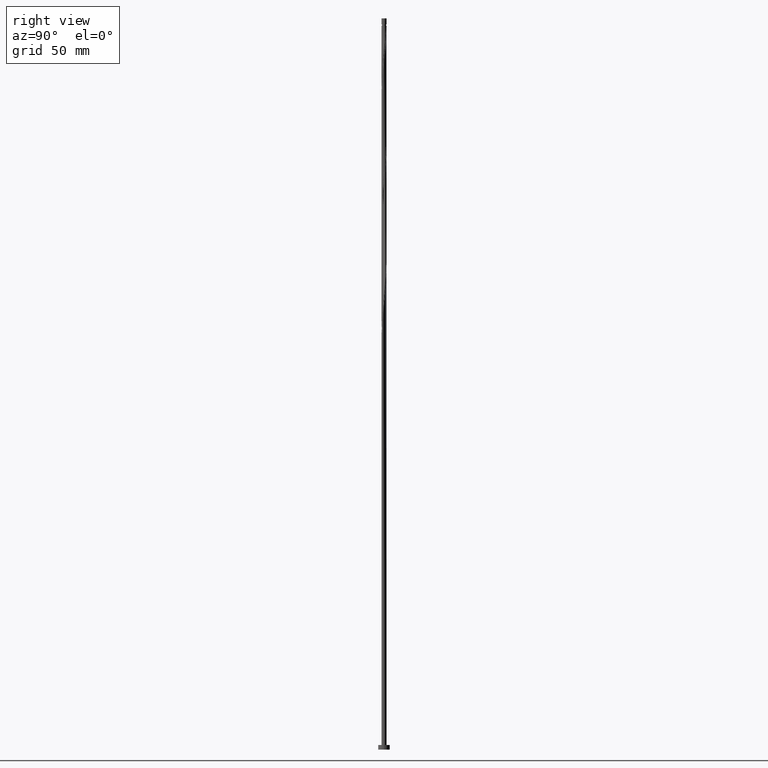
[diagram: clean part render]
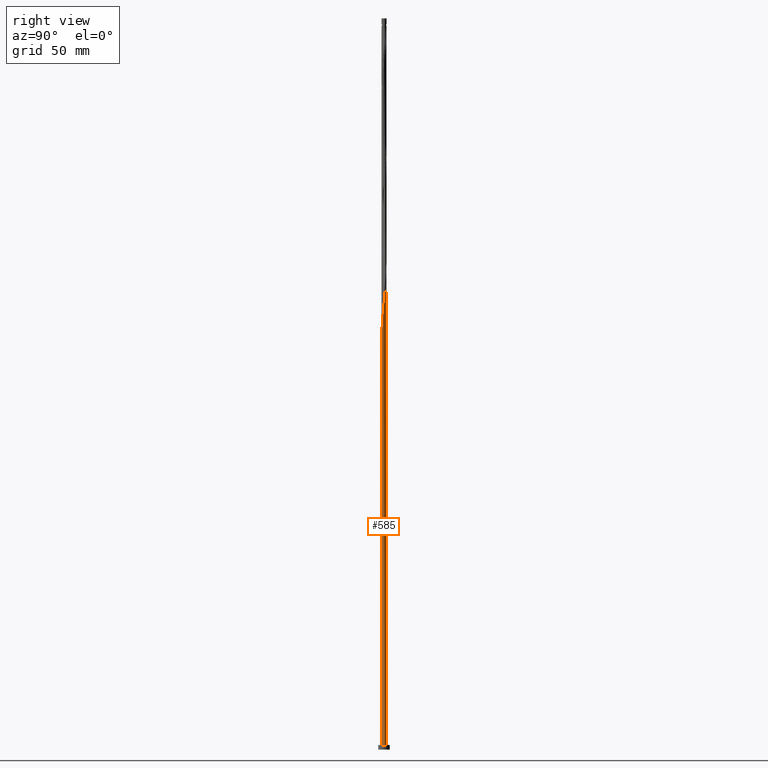
[diagram: same view with one face highlighted and labeled with its STEP entity id]
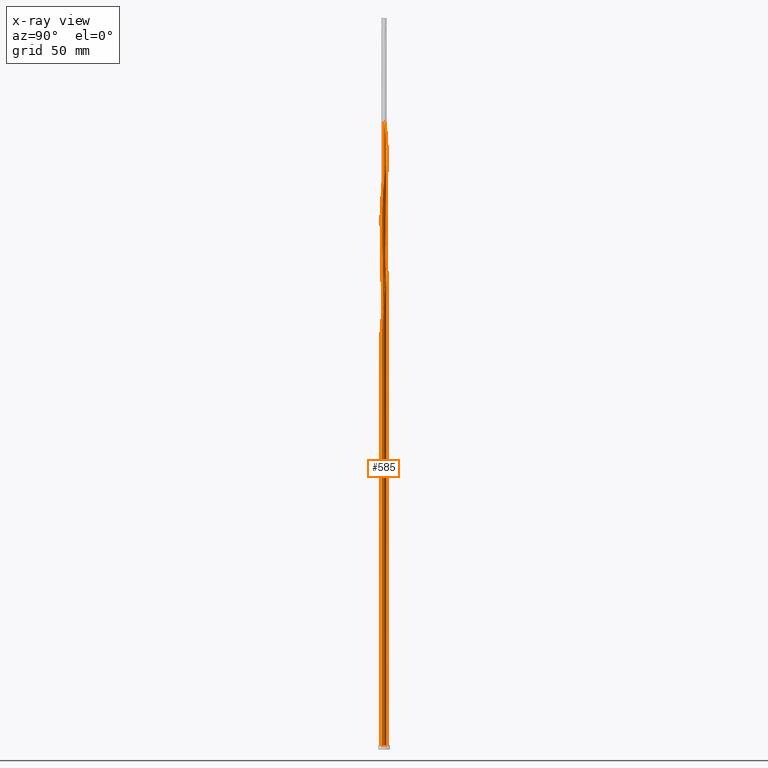
[diagram: x-ray of the same camera — body ghosted, the highlighted face saturated]
A machine part, right view. The second image highlights one B-rep face of the part: STEP entity #585.
The next image is the same camera in x-ray: the body ghosted, the highlighted face saturated — about 0% of this face is hidden behind the body in this view.
In plain terms, the highlighted cylindrical surface (bore or boss wall) has radius 1.1 mm, axis along (-0, -0, -1).
Its self-contained STEP definition (entity closure, byte-faithful):
#11 = CARTESIAN_POINT ( 'NONE',  ( -0.6113212497511597565, -0.9228475015837783735, 174.0907683997523350 ) ) ;
#21 = CARTESIAN_POINT ( 'NONE',  ( 0.8762684882897081584, 0.6649462658218884270, 197.5282683997523350 ) ) ;
#26 = CARTESIAN_POINT ( 'NONE',  ( 1.102663795134546820, 0.09743580695113916723, 192.8407683997523634 ) ) ;
#39 = CARTESIAN_POINT ( 'NONE',  ( -0.4532865922401200787, 1.002263071900458158, 208.7782683997524202 ) ) ;
#51 = CARTESIAN_POINT ( 'NONE',  ( 1.002263071900458158, 0.4532865922401198566, 195.6532683997523634 ) ) ;
#60 = CARTESIAN_POINT ( 'NONE',  ( -0.09743580695113907009, 1.102663795134546820, 205.9657683997523634 ) ) ;
#61 = CARTESIAN_POINT ( 'NONE',  ( 0.09743580695113933376, 1.102663795134547042, 155.3407683997523918 ) ) ;
#66 = ORIENTED_EDGE ( 'NONE', *, *, #1743, .F. ) ;
#91 = CARTESIAN_POINT ( 'NONE',  ( 0.5662145191044608561, -0.9511899389354607770, 235.9657683997523634 ) ) ;
#111 = CARTESIAN_POINT ( 'NONE',  ( 0.1503728896905283108, 1.096699218392564124, 256.5907683997523350 ) ) ;
#122 = CARTESIAN_POINT ( 'NONE',  ( -0.4532865922401200787, 1.002263071900458158, 156.2782683997523918 ) ) ;
#125 = CARTESIAN_POINT ( 'NONE',  ( -1.099681506763556138, 0.02646854136969436361, 165.6532683997523634 ) ) ;
#139 = CARTESIAN_POINT ( 'NONE',  ( -1.053336204865455095, -0.3403586653757789682, 168.4657683997523634 ) ) ;
#147 = CARTESIAN_POINT ( 'NONE',  ( -1.100000000000002087, -0.1105541596785113434, 166.6920224008099183 ) ) ;
#163 = CARTESIAN_POINT ( 'NONE',  ( -1.002263071900458158, -0.4532865922401200787, 221.9032683997524202 ) ) ;
#169 = CARTESIAN_POINT ( 'NONE',  ( 1.066220390907909987, -0.2705070757155680905, 190.0282683997523350 ) ) ;
#185 = CARTESIAN_POINT ( 'NONE',  ( -0.2188972361634589081, 1.078000000000001402, 154.4032683997523634 ) ) ;
#187 = CARTESIAN_POINT ( 'NONE',  ( -0.3403586653757790237, 1.053336204865455095, 207.8407683997523350 ) ) ;
#196 = CARTESIAN_POINT ( 'NONE',  ( 0.09743580695113919499, -1.102663795134546376, 232.2157683997523350 ) ) ;
#198 = CARTESIAN_POINT ( 'NONE',  ( -1.002263071900458380, 0.4532865922401200787, 165.6532683997523634 ) ) ;
#206 = EDGE_CURVE ( 'NONE', #938, #261, #651, .T. ) ;
#217 = CARTESIAN_POINT ( 'NONE',  ( -0.9792945325035167237, 0.5009812557458838134, 266.9032683997525055 ) ) ;
#222 = CARTESIAN_POINT ( 'NONE',  ( 1.096699218392564124, -0.1503728896905282275, 243.4657683997523350 ) ) ;
#232 = CARTESIAN_POINT ( 'NONE',  ( -0.09743580695113907009, 1.102663795134546820, 258.4657683997523350 ) ) ;
#244 = CARTESIAN_POINT ( 'NONE',  ( -1.066220390907909987, 0.2705070757155679795, 268.7782683997524487 ) ) ;
#252 = DIRECTION ( 'NONE',  ( -0.000000000000000000, -0.000000000000000000, -1.000000000000000000 ) ) ;
#258 = CARTESIAN_POINT ( 'NONE',  ( 0.3403586653757788572, -1.053336204865455095, 181.5907683997523065 ) ) ;
#261 = VERTEX_POINT ( 'NONE', #526 ) ;
#267 = CARTESIAN_POINT ( 'NONE',  ( 0.6649462658218884270, -0.8762684882897081584, 184.4032683997523918 ) ) ;
#287 = CARTESIAN_POINT ( 'NONE',  ( -0.8762684882897081584, -0.6649462658218884270, 171.2782683997523634 ) ) ;
#295 = CARTESIAN_POINT ( 'NONE',  ( -1.099681506763556138, 0.02646854136969436361, 218.1532683997524202 ) ) ;
#310 = CARTESIAN_POINT ( 'NONE',  ( 1.078000000000001402, 0.2188972361634589914, 193.7782683997523634 ) ) ;
#321 = CARTESIAN_POINT ( 'NONE',  ( 0.9228475015837783735, -0.6113212497511599786, 187.2157683997523350 ) ) ;
#335 = CARTESIAN_POINT ( 'NONE',  ( -1.053336204865455095, -0.3403586653757789682, 220.9657683997523065 ) ) ;
#337 = CARTESIAN_POINT ( 'NONE',  ( -0.8013470376439553178, 0.7636780125393161089, 162.8407683997523918 ) ) ;
#346 = CARTESIAN_POINT ( 'NONE',  ( -0.8432627570615474077, 0.7063341436975574261, 160.0282683997523350 ) ) ;
#347 = CARTESIAN_POINT ( 'NONE',  ( 0.4532865922401199121, -1.002263071900458158, 235.0282683997523918 ) ) ;
#355 = CARTESIAN_POINT ( 'NONE',  ( -0.9228475015837784845, 0.6113212497511597565, 265.9657683997523350 ) ) ;
#356 = CARTESIAN_POINT ( 'NONE',  ( 0.2188972361634594632, 1.078000000000001402, 154.4032683997523634 ) ) ;
#367 = CARTESIAN_POINT ( 'NONE',  ( -1.035741563423254519, 0.3906412617406077592, 267.8407683997523350 ) ) ;
#376 = CARTESIAN_POINT ( 'NONE',  ( 1.102663795134546820, 0.09743580695113916723, 245.3407683997523634 ) ) ;
#385 = CARTESIAN_POINT ( 'NONE',  ( -0.3403586653757790237, 1.053336204865455095, 260.3407683997523350 ) ) ;
#392 = CARTESIAN_POINT ( 'NONE',  ( -1.002263071900458158, -0.4532865922401200787, 169.4032683997524202 ) ) ;
#393 = ORIENTED_EDGE ( 'NONE', *, *, #1470, .F. ) ;
#400 = CARTESIAN_POINT ( 'NONE',  ( -1.078000000000001402, -0.2188972361634591302, 167.5282683997523634 ) ) ;
#406 = CARTESIAN_POINT ( 'NONE',  ( 0.000000000000000000, 0.000000000000000000, 2.000000000000000000 ) ) ;
#409 = CARTESIAN_POINT ( 'NONE',  ( -0.8013470376439549847, -0.7636780125393157759, 172.2157683997523350 ) ) ;
#435 = CARTESIAN_POINT ( 'NONE',  ( 1.053336204865455095, 0.3403586653757787461, 194.7157683997523350 ) ) ;
#442 = VECTOR ( 'NONE', #792, 1000.000000000000000 ) ;
#443 = CARTESIAN_POINT ( 'NONE',  ( 0.3403586653757788572, -1.053336204865455095, 234.0907683997523350 ) ) ;
#452 = CARTESIAN_POINT ( 'NONE',  ( 0.5009812557458839244, 0.9792945325035165016, 201.2782683997523350 ) ) ;
#462 = CARTESIAN_POINT ( 'NONE',  ( -0.2188972361634589359, 1.078000000000001402, 206.9032683997524487 ) ) ;
#472 = CARTESIAN_POINT ( 'NONE',  ( -0.2705070757155680905, -1.066220390907909987, 229.4032683997524487 ) ) ;
#482 = CARTESIAN_POINT ( 'NONE',  ( 0.3906412617406079257, 1.035741563423254519, 254.7157683997523634 ) ) ;
#500 = CARTESIAN_POINT ( 'NONE',  ( -1.099681506763556138, 0.02646854136969436361, 270.6532683997523918 ) ) ;
#502 = CARTESIAN_POINT ( 'NONE',  ( -1.100000000000002087, -6.511368698765218088E-16, 169.2027854776584945 ) ) ;
#505 = VERTEX_POINT ( 'NONE', #911 ) ;
#509 = CARTESIAN_POINT ( 'NONE',  ( 0.8762684882897081584, 0.6649462658218884270, 250.0282683997523918 ) ) ;
#514 = CARTESIAN_POINT ( 'NONE',  ( -0.7636780125393158869, 0.8013470376439547627, 264.0907683997523350 ) ) ;
#526 = CARTESIAN_POINT ( 'NONE',  ( -1.100000000000000089, 0.000000000000000000, 2.000000000000000000 ) ) ;
#528 = CARTESIAN_POINT ( 'NONE',  ( -1.100000000000000089, 0.000000000000000000, 315.0000000000000000 ) ) ;
#559 = VERTEX_POINT ( 'NONE', #1472 ) ;
#574 = CARTESIAN_POINT ( 'NONE',  ( -0.5009812557458838134, -0.9792945325035165016, 175.0282683997523634 ) ) ;
#582 = CARTESIAN_POINT ( 'NONE',  ( -0.9511899389354607770, -0.5662145191044608561, 222.8407683997523918 ) ) ;
#585 = ADVANCED_FACE ( 'NONE', ( #1213 ), #1773, .T. ) ;
#602 = CARTESIAN_POINT ( 'NONE',  ( -0.9228475015837784845, 0.6113212497511597565, 213.4657683997523350 ) ) ;
#607 = CARTESIAN_POINT ( 'NONE',  ( -0.2188972361634589081, 1.078000000000001402, 154.4032683997523634 ) ) ;
#611 = EDGE_CURVE ( 'NONE', #938, #505, #1640, .T. ) ;
#613 = CARTESIAN_POINT ( 'NONE',  ( -1.096699218392564124, 0.1503728896905280332, 217.2157683997523350 ) ) ;
#621 = CARTESIAN_POINT ( 'NONE',  ( 0.000000000000000000, 0.000000000000000000, 154.4032683997523918 ) ) ;
#649 = CARTESIAN_POINT ( 'NONE',  ( 1.066220390907909987, -0.2705070757155680905, 242.5282683997524202 ) ) ;
#651 = LINE ( 'NONE', #1032, #442 ) ;
#652 = ORIENTED_EDGE ( 'NONE', *, *, #206, .T. ) ;
#654 = CARTESIAN_POINT ( 'NONE',  ( 0.9792945325035165016, -0.5009812557458839244, 240.6532683997523918 ) ) ;
#663 = CARTESIAN_POINT ( 'NONE',  ( 0.2188972361634594632, 1.078000000000001402, 154.4032683997523634 ) ) ;
#675 = CARTESIAN_POINT ( 'NONE',  ( -0.02646854136969447116, -1.099681506763556138, 178.7782683997523634 ) ) ;
#676 = CARTESIAN_POINT ( 'NONE',  ( -1.100000000000002087, 0.01323618688303178186, 165.7533886336211708 ) ) ;
#681 = AXIS2_PLACEMENT_3D ( 'NONE', #621, #869, #1428 ) ;
#697 = CARTESIAN_POINT ( 'NONE',  ( 0.09743580695113919499, -1.102663795134546376, 179.7157683997523918 ) ) ;
#710 = EDGE_CURVE ( 'NONE', #261, #559, #1753, .T. ) ;
#712 = CARTESIAN_POINT ( 'NONE',  ( -0.9792945325035167237, 0.5009812557458838134, 214.4032683997524202 ) ) ;
#720 = CARTESIAN_POINT ( 'NONE',  ( 0.3906412617406079257, 1.035741563423254519, 202.2157683997523918 ) ) ;
#728 = CARTESIAN_POINT ( 'NONE',  ( 1.099681506763556138, -0.02646854136969452320, 191.9032683997523918 ) ) ;
#732 = ORIENTED_EDGE ( 'NONE', *, *, #206, .F. ) ;
#739 = CARTESIAN_POINT ( 'NONE',  ( -0.8013470376439549847, -0.7636780125393157759, 224.7157683997522781 ) ) ;
#747 = CARTESIAN_POINT ( 'NONE',  ( -0.5009812557458838134, -0.9792945325035165016, 227.5282683997523918 ) ) ;
#750 = CARTESIAN_POINT ( 'NONE',  ( -0.1503728896905281165, 1.096699218392565234, 157.2157683997523350 ) ) ;
#757 = CARTESIAN_POINT ( 'NONE',  ( 1.053336204865455095, 0.3403586653757787461, 247.2157683997523350 ) ) ;
#770 = CARTESIAN_POINT ( 'NONE',  ( 0.2705070757155680905, 1.066220390907909987, 255.6532683997523918 ) ) ;
#774 = CARTESIAN_POINT ( 'NONE',  ( -0.02646854136969434973, 1.099681506763556138, 156.2782683997523350 ) ) ;
#777 = CARTESIAN_POINT ( 'NONE',  ( 0.000000000000000000, 0.000000000000000000, 2.000000000000000000 ) ) ;
#782 = CARTESIAN_POINT ( 'NONE',  ( 1.099681506763556138, -0.02646854136969452320, 244.4032683997523918 ) ) ;
#783 = CARTESIAN_POINT ( 'NONE',  ( -1.100000000000002087, -6.511368698765218088E-16, 169.2027854776584661 ) ) ;
#789 = CARTESIAN_POINT ( 'NONE',  ( -0.2188972361634589359, 1.078000000000001402, 259.4032683997523918 ) ) ;
#792 = DIRECTION ( 'NONE',  ( -0.000000000000000000, -0.000000000000000000, -1.000000000000000000 ) ) ;
#800 = CARTESIAN_POINT ( 'NONE',  ( -1.096699218392564124, 0.1503728896905280332, 269.7157683997523350 ) ) ;
#810 = CARTESIAN_POINT ( 'NONE',  ( -0.2705070757155680905, -1.066220390907909987, 176.9032683997523350 ) ) ;
#826 = CARTESIAN_POINT ( 'NONE',  ( 0.4532865922401199121, -1.002263071900458158, 182.5282683997523918 ) ) ;
#850 = CARTESIAN_POINT ( 'NONE',  ( 1.035741563423254519, -0.3906412617406078147, 189.0907683997523065 ) ) ;
#860 = CARTESIAN_POINT ( 'NONE',  ( 0.8013470376439549847, 0.7636780125393156649, 198.4657683997523350 ) ) ;
#869 = DIRECTION ( 'NONE',  ( 0.000000000000000000, -0.000000000000000000, -1.000000000000000000 ) ) ;
#871 = CARTESIAN_POINT ( 'NONE',  ( -0.7063341436975575371, -0.8432627570615474077, 225.6532683997524771 ) ) ;
#879 = CARTESIAN_POINT ( 'NONE',  ( 0.1503728896905283108, 1.096699218392564124, 204.0907683997523350 ) ) ;
#887 = CARTESIAN_POINT ( 'NONE',  ( -1.100000000000001865, -6.492711481863322468E-16, 270.8537513218462891 ) ) ;
#890 = CARTESIAN_POINT ( 'NONE',  ( 0.000000000000000000, 0.000000000000000000, 315.0000000000000000 ) ) ;
#901 = CARTESIAN_POINT ( 'NONE',  ( 0.8432627570615474077, -0.7063341436975575371, 238.7782683997524202 ) ) ;
#902 = AXIS2_PLACEMENT_3D ( 'NONE', #406, #1641, #1103 ) ;
#910 = CARTESIAN_POINT ( 'NONE',  ( -0.8762684882897080474, 0.6649462658218886491, 163.7782683997523634 ) ) ;
#911 = CARTESIAN_POINT ( 'NONE',  ( -1.100000000000001865, -6.492711481863322468E-16, 270.8537513218462891 ) ) ;
#912 = DIRECTION ( 'NONE',  ( 0.000000000000000000, 0.000000000000000000, 1.000000000000000000 ) ) ;
#917 = CARTESIAN_POINT ( 'NONE',  ( 0.7063341436975575371, 0.8432627570615474077, 251.9032683997524202 ) ) ;
#925 = CARTESIAN_POINT ( 'NONE',  ( -0.5662145191044608561, 0.9511899389354607770, 262.2157683997522781 ) ) ;
#936 = CARTESIAN_POINT ( 'NONE',  ( -0.7063341436975575371, -0.8432627570615474077, 173.1532683997523918 ) ) ;
#938 = VERTEX_POINT ( 'NONE', #1017 ) ;
#960 = CARTESIAN_POINT ( 'NONE',  ( -0.9792945325035167237, 0.5009812557458838134, 161.9032683997523918 ) ) ;
#974 = CARTESIAN_POINT ( 'NONE',  ( -0.5662145191044608561, 0.9511899389354607770, 209.7157683997523350 ) ) ;
#1001 = CARTESIAN_POINT ( 'NONE',  ( -0.7636780125393158869, 0.8013470376439547627, 211.5907683997523634 ) ) ;
#1009 = CARTESIAN_POINT ( 'NONE',  ( -0.02646854136969447116, -1.099681506763556138, 231.2782683997524202 ) ) ;
#1016 = CARTESIAN_POINT ( 'NONE',  ( -0.7636780125393158869, 0.8013470376439547627, 159.0907683997523065 ) ) ;
#1017 = CARTESIAN_POINT ( 'NONE',  ( -1.100000000000001865, 7.183028507233848943E-16, 165.8537513218462607 ) ) ;
#1020 = CARTESIAN_POINT ( 'NONE',  ( 0.6649462658218884270, -0.8762684882897081584, 236.9032683997523634 ) ) ;
#1029 = CARTESIAN_POINT ( 'NONE',  ( 0.8013470376439549847, 0.7636780125393156649, 250.9657683997523634 ) ) ;
#1032 = CARTESIAN_POINT ( 'NONE',  ( -1.100000000000000089, 0.000000000000000000, 315.0000000000000000 ) ) ;
#1036 = CARTESIAN_POINT ( 'NONE',  ( 1.078000000000001402, 0.2188972361634589914, 246.2782683997524202 ) ) ;
#1040 = CARTESIAN_POINT ( 'NONE',  ( -0.9511899389354613321, 0.5662145191044611892, 164.7157683997523918 ) ) ;
#1048 = CARTESIAN_POINT ( 'NONE',  ( -0.5009812557458837023, 0.9792945325035169457, 160.0282683997523918 ) ) ;
#1050 = VERTEX_POINT ( 'NONE', #185 ) ;
#1052 = CARTESIAN_POINT ( 'NONE',  ( -0.4532865922401200787, 1.002263071900458158, 261.2782683997525055 ) ) ;
#1058 = ORIENTED_EDGE ( 'NONE', *, *, #1140, .T. ) ;
#1065 = DIRECTION ( 'NONE',  ( -0.000000000000000000, -0.000000000000000000, -1.000000000000000000 ) ) ;
#1103 = DIRECTION ( 'NONE',  ( 1.000000000000000000, 0.000000000000000000, 0.000000000000000000 ) ) ;
#1130 = CIRCLE ( 'NONE', #681, 1.100000000000000089 ) ;
#1134 = CARTESIAN_POINT ( 'NONE',  ( 0.6113212497511599786, 0.9228475015837781514, 200.3407683997523065 ) ) ;
#1140 = EDGE_CURVE ( 'NONE', #1050, #1177, #1130, .T. ) ;
#1146 = CARTESIAN_POINT ( 'NONE',  ( -1.102663795134546376, -0.09743580695113929213, 219.0907683997523918 ) ) ;
#1151 = CARTESIAN_POINT ( 'NONE',  ( -0.3403586653757790237, 1.053336204865455095, 155.3407683997523634 ) ) ;
#1153 = ORIENTED_EDGE ( 'NONE', *, *, #1406, .F. ) ;
#1161 = CARTESIAN_POINT ( 'NONE',  ( -0.8762684882897081584, -0.6649462658218884270, 223.7782683997523918 ) ) ;
#1171 = CARTESIAN_POINT ( 'NONE',  ( -0.6649462658218885380, 0.8762684882897081584, 263.1532683997523918 ) ) ;
#1174 = CARTESIAN_POINT ( 'NONE',  ( -0.3906412617406080368, 1.035741563423254963, 159.0907683997524202 ) ) ;
#1177 = VERTEX_POINT ( 'NONE', #663 ) ;
#1180 = CARTESIAN_POINT ( 'NONE',  ( 0.9228475015837783735, -0.6113212497511599786, 239.7157683997523350 ) ) ;
#1203 = CARTESIAN_POINT ( 'NONE',  ( 1.002263071900458158, 0.4532865922401198566, 248.1532683997524202 ) ) ;
#1204 = CARTESIAN_POINT ( 'NONE',  ( -0.6113212497511602006, 0.9228475015837790396, 160.9657683997523634 ) ) ;
#1208 = LINE ( 'NONE', #528, #1516 ) ;
#1213 = FACE_OUTER_BOUND ( 'NONE', #1768, .T. ) ;
#1214 = CARTESIAN_POINT ( 'NONE',  ( -1.066220390907909987, 0.2705070757155679795, 163.7782683997523634 ) ) ;
#1224 = CARTESIAN_POINT ( 'NONE',  ( -1.100000000000001865, 7.183028507233848943E-16, 165.8537513218462607 ) ) ;
#1247 = CARTESIAN_POINT ( 'NONE',  ( 0.7636780125393157759, -0.8013470376439549847, 185.3407683997523350 ) ) ;
#1260 = CARTESIAN_POINT ( 'NONE',  ( -1.100000000000001865, 7.183028507233848943E-16, 165.8537513218462607 ) ) ;
#1271 = CARTESIAN_POINT ( 'NONE',  ( -0.8432627570615474077, 0.7063341436975574261, 212.5282683997523918 ) ) ;
#1281 = CARTESIAN_POINT ( 'NONE',  ( 0.02646854136969459953, 1.099681506763555472, 205.0282683997523918 ) ) ;
#1293 = CARTESIAN_POINT ( 'NONE',  ( 0.9511899389354607770, 0.5662145191044608561, 196.5907683997523350 ) ) ;
#1301 = CARTESIAN_POINT ( 'NONE',  ( 0.2188972361634590191, -1.078000000000001402, 233.1532683997524487 ) ) ;
#1312 = AXIS2_PLACEMENT_3D ( 'NONE', #777, #912, #1474 ) ;
#1341 = CARTESIAN_POINT ( 'NONE',  ( -0.8432627570615474077, 0.7063341436975574261, 265.0282683997523918 ) ) ;
#1345 = ORIENTED_EDGE ( 'NONE', *, *, #1436, .T. ) ;
#1358 = CARTESIAN_POINT ( 'NONE',  ( -0.1503728896905280887, -1.096699218392564124, 177.8407683997523918 ) ) ;
#1360 = CARTESIAN_POINT ( 'NONE',  ( -1.096699218392564124, 0.1503728896905280332, 164.7157683997523918 ) ) ;
#1368 = CIRCLE ( 'NONE', #1312, 1.100000000000000089 ) ;
#1376 = CARTESIAN_POINT ( 'NONE',  ( 0.8432627570615474077, -0.7063341436975575371, 186.2782683997523634 ) ) ;
#1392 = ORIENTED_EDGE ( 'NONE', *, *, #611, .F. ) ;
#1400 = CARTESIAN_POINT ( 'NONE',  ( 0.9792945325035165016, -0.5009812557458839244, 188.1532683997524202 ) ) ;
#1402 =( BOUNDED_CURVE ( )  B_SPLINE_CURVE ( 2, ( #607, #1151, #122, #1644, #1576, #1016, #346, #1450, #960, #1624, #1214, #1360, #125, #676, #1224 ),
 .UNSPECIFIED., .F., .T. ) 
 B_SPLINE_CURVE_WITH_KNOTS ( ( 3, 2, 2, 2, 2, 2, 2, 3 ),
 ( 0.000000000000000000, 0.008928571428571396851, 0.01785714285714290472, 0.02678571428571430157, 0.03571428571428569843, 0.04464285714285709528, 0.05357142857142860315, 0.05453034012992175050 ),
 .UNSPECIFIED. ) 
 CURVE ( )  GEOMETRIC_REPRESENTATION_ITEM ( )  RATIONAL_B_SPLINE_CURVE ( ( 0.9090909090910110901, 0.9033747362666856295, 0.9090909090910110901, 0.9033747362666856295, 0.9090909090910110901, 0.9033747362666856295, 0.9090909090910110901, 0.9033747362666856295, 0.9090909090910110901, 0.9033747362666856295, 0.9090909090910110901, 0.9033747362666856295, 0.9090909090910110901, 0.9084770030215529868, 0.9079949616362814613 ) ) 
 REPRESENTATION_ITEM ( '' )  );
#1406 = EDGE_CURVE ( 'NONE', #505, #1775, #1208, .T. ) ;
#1417 = CARTESIAN_POINT ( 'NONE',  ( 0.2705070757155680905, 1.066220390907909987, 203.1532683997523350 ) ) ;
#1428 = DIRECTION ( 'NONE',  ( -1.000000000000000000, 0.000000000000000000, 0.000000000000000000 ) ) ;
#1431 = CARTESIAN_POINT ( 'NONE',  ( -0.6113212497511597565, -0.9228475015837783735, 226.5907683997523350 ) ) ;
#1436 = EDGE_CURVE ( 'NONE', #559, #261, #1368, .T. ) ;
#1442 = CARTESIAN_POINT ( 'NONE',  ( -0.6649462658218885380, 0.8762684882897081584, 210.6532683997524202 ) ) ;
#1444 = CARTESIAN_POINT ( 'NONE',  ( -1.100000000000001199, 0.1105541596785175190, 168.3645143986948369 ) ) ;
#1450 = CARTESIAN_POINT ( 'NONE',  ( -0.9228475015837784845, 0.6113212497511597565, 160.9657683997523634 ) ) ;
#1470 = EDGE_CURVE ( 'NONE', #1050, #938, #1402, .T. ) ;
#1472 = CARTESIAN_POINT ( 'NONE',  ( 1.100000000000000089, 0.000000000000000000, 2.000000000000000000 ) ) ;
#1474 = DIRECTION ( 'NONE',  ( 1.000000000000000000, 0.000000000000000000, 0.000000000000000000 ) ) ;
#1479 = CARTESIAN_POINT ( 'NONE',  ( 0.5009812557458839244, 0.9792945325035165016, 253.7782683997524202 ) ) ;
#1488 = CARTESIAN_POINT ( 'NONE',  ( 1.035741563423254519, -0.3906412617406078147, 241.5907683997523634 ) ) ;
#1499 = CARTESIAN_POINT ( 'NONE',  ( -0.3906412617406078147, -1.035741563423254519, 175.9657683997523065 ) ) ;
#1507 = CARTESIAN_POINT ( 'NONE',  ( 0.5662145191044608561, -0.9511899389354607770, 183.4657683997523918 ) ) ;
#1516 = VECTOR ( 'NONE', #252, 1000.000000000000000 ) ;
#1518 = ORIENTED_EDGE ( 'NONE', *, *, #710, .T. ) ;
#1539 = CARTESIAN_POINT ( 'NONE',  ( -1.035741563423254519, 0.3906412617406077592, 215.3407683997523634 ) ) ;
#1567 = CARTESIAN_POINT ( 'NONE',  ( 1.096699218392564124, -0.1503728896905282275, 190.9657683997523918 ) ) ;
#1576 = CARTESIAN_POINT ( 'NONE',  ( -0.6649462658218885380, 0.8762684882897081584, 158.1532683997524202 ) ) ;
#1579 = CARTESIAN_POINT ( 'NONE',  ( -1.066220390907909987, 0.2705070757155679795, 216.2782683997523918 ) ) ;
#1589 = CARTESIAN_POINT ( 'NONE',  ( 0.02646854136969459953, 1.099681506763555472, 257.5282683997523918 ) ) ;
#1597 =( BOUNDED_CURVE ( )  B_SPLINE_CURVE ( 2, ( #502, #1444, #1741, #1765, #198, #1040, #910, #337, #1731, #1204, #1048, #1174, #1610, #750, #774, #61, #356 ),
 .UNSPECIFIED., .F., .T. ) 
 B_SPLINE_CURVE_WITH_KNOTS ( ( 3, 2, 2, 2, 2, 2, 2, 2, 3 ),
 ( 0.9295303401299221946, 0.9375000000000000000, 0.9464285714285713969, 0.9553571428571429047, 0.9642857142857143016, 0.9732142857142856984, 0.9821428571428570953, 0.9910714285714286031, 1.000000000000000000 ),
 .UNSPECIFIED. ) 
 CURVE ( )  GEOMETRIC_REPRESENTATION_ITEM ( )  RATIONAL_B_SPLINE_CURVE ( ( 0.9079949616362825715, 0.9039886423361453982, 0.9090909090910126444, 0.9033747362666869618, 0.9090909090910126444, 0.9033747362666869618, 0.9090909090910126444, 0.9033747362666869618, 0.9090909090910126444, 0.9033747362666869618, 0.9090909090910126444, 0.9033747362666869618, 0.9090909090910126444, 0.9033747362666869618, 0.9090909090910126444, 0.9033747362666869618, 0.9090909090910126444 ) ) 
 REPRESENTATION_ITEM ( '' )  );
#1609 = CARTESIAN_POINT ( 'NONE',  ( 0.7636780125393157759, -0.8013470376439549847, 237.8407683997523350 ) ) ;
#1610 = CARTESIAN_POINT ( 'NONE',  ( -0.2705070757155678685, 1.066220390907909987, 158.1532683997523634 ) ) ;
#1624 = CARTESIAN_POINT ( 'NONE',  ( -1.035741563423254519, 0.3906412617406077592, 162.8407683997523634 ) ) ;
#1634 = DIRECTION ( 'NONE',  ( -1.000000000000000000, 0.000000000000000000, 0.000000000000000000 ) ) ;
#1640 =( BOUNDED_CURVE ( )  B_SPLINE_CURVE ( 2, ( #1260, #147, #400, #139, #392, #1654, #287, #409, #936, #11, #574, #1499, #810, #1358, #675, #697, #1793, #258, #826, #1507, #267, #1247, #1376, #321, #1400, #850, #169, #1567, #728, #26, #310, #435, #51, #1293, #21, #860, #1699, #1134, #452, #720, #1417, #879, #1281, #60, #462, #187, #39, #974, #1442, #1001, #1271, #602, #712, #1539, #1579, #613, #295, #1146, #1704, #335, #163, #582, #1161, #739, #871, #1431, #747, #1716, #472, #1688, #1009, #196, #1301, #443, #347, #91, #1020, #1609, #901, #1180, #654, #1488, #649, #222, #782, #376, #1036, #757, #1203, #1757, #509, #1029, #917, #1764, #1479, #482, #770, #111, #1589, #232, #789, #385, #1052, #925, #1171, #514, #1341, #355, #217, #367, #244, #800, #500, #1729, #887 ),
 .UNSPECIFIED., .F., .T. ) 
 B_SPLINE_CURVE_WITH_KNOTS ( ( 3, 2, 2, 2, 2, 2, 2, 2, 2, 2, 2, 2, 2, 2, 2, 2, 2, 2, 2, 2, 2, 2, 2, 2, 2, 2, 2, 2, 2, 2, 2, 2, 2, 2, 2, 2, 2, 2, 2, 2, 2, 2, 2, 2, 2, 2, 2, 2, 2, 2, 2, 2, 2, 2, 2, 2, 2, 3 ),
 ( 0.05453034012992175050, 0.06250000000000000000, 0.07142857142857139685, 0.08035714285714290472, 0.08928571428571430157, 0.09821428571428569843, 0.1071428571428570953, 0.1160714285714286031, 0.1250000000000000000, 0.1339285714285713969, 0.1428571428571429047, 0.1517857142857143016, 0.1607142857142856984, 0.1696428571428570953, 0.1785714285714286031, 0.1875000000000000000, 0.1964285714285713969, 0.2053571428571429047, 0.2142857142857143016, 0.2232142857142856984, 0.2321428571428570953, 0.2410714285714286031, 0.2500000000000000000, 0.2589285714285713969, 0.2678571428571429047, 0.2767857142857143016, 0.2857142857142856984, 0.2946428571428570953, 0.3035714285714286031, 0.3125000000000000000, 0.3214285714285713969, 0.3303571428571429047, 0.3392857142857143016, 0.3482142857142856984, 0.3571428571428570953, 0.3660714285714286031, 0.3750000000000000000, 0.3839285714285713969, 0.3928571428571429047, 0.4017857142857143016, 0.4107142857142856984, 0.4196428571428570953, 0.4285714285714286031, 0.4375000000000000000, 0.4464285714285713969, 0.4553571428571429047, 0.4642857142857143016, 0.4732142857142856984, 0.4821428571428570953, 0.4910714285714286031, 0.5000000000000000000, 0.5089285714285713969, 0.5178571428571427937, 0.5267857142857143016, 0.5357142857142856984, 0.5446428571428572063, 0.5535714285714286031, 0.5545303401299210844 ),
 .UNSPECIFIED. ) 
 CURVE ( )  GEOMETRIC_REPRESENTATION_ITEM ( )  RATIONAL_B_SPLINE_CURVE ( ( 0.9079949616362814613, 0.9039886423361437329, 0.9090909090910110901, 0.9033747362666856295, 0.9090909090910110901, 0.9033747362666856295, 0.9090909090910110901, 0.9033747362666856295, 0.9090909090910110901, 0.9033747362666856295, 0.9090909090910110901, 0.9033747362666856295, 0.9090909090910110901, 0.9033747362666856295, 0.9090909090910110901, 0.9033747362666856295, 0.9090909090910110901, 0.9033747362666856295, 0.9090909090910110901, 0.9033747362666856295, 0.9090909090910110901, 0.9033747362666856295, 0.9090909090910110901, 0.9033747362666856295, 0.9090909090910110901, 0.9033747362666856295, 0.9090909090910110901, 0.9033747362666856295, 0.9090909090910110901, 0.9033747362666856295, 0.9090909090910110901, 0.9033747362666856295, 0.9090909090910110901, 0.9033747362666856295, 0.9090909090910110901, 0.9033747362666856295, 0.9090909090910110901, 0.9033747362666856295, 0.9090909090910110901, 0.9033747362666856295, 0.9090909090910110901, 0.9033747362666856295, 0.9090909090910110901, 0.9033747362666856295, 0.9090909090910110901, 0.9033747362666856295, 0.9090909090910110901, 0.9033747362666856295, 0.9090909090910110901, 0.9033747362666856295, 0.9090909090910110901, 0.9033747362666856295, 0.9090909090910110901, 0.9033747362666856295, 0.9090909090910110901, 0.9033747362666856295, 0.9090909090910110901, 0.9033747362666856295, 0.9090909090910110901, 0.9033747362666856295, 0.9090909090910110901, 0.9033747362666856295, 0.9090909090910110901, 0.9033747362666856295, 0.9090909090910110901, 0.9033747362666856295, 0.9090909090910110901, 0.9033747362666856295, 0.9090909090910110901, 0.9033747362666856295, 0.9090909090910110901, 0.9033747362666856295, 0.9090909090910110901, 0.9033747362666856295, 0.9090909090910110901, 0.9033747362666856295, 0.9090909090910110901, 0.9033747362666856295, 0.9090909090910110901, 0.9033747362666856295, 0.9090909090910110901, 0.9033747362666856295, 0.9090909090910110901, 0.9033747362666856295, 0.9090909090910110901, 0.9033747362666856295, 0.9090909090910110901, 0.9033747362666856295, 0.9090909090910110901, 0.9033747362666856295, 0.9090909090910110901, 0.9033747362666856295, 0.9090909090910110901, 0.9033747362666856295, 0.9090909090910110901, 0.9033747362666856295, 0.9090909090910110901, 0.9033747362666856295, 0.9090909090910110901, 0.9033747362666856295, 0.9090909090910110901, 0.9033747362666856295, 0.9090909090910110901, 0.9033747362666856295, 0.9090909090910110901, 0.9033747362666856295, 0.9090909090910110901, 0.9033747362666856295, 0.9090909090910110901, 0.9033747362666856295, 0.9090909090910110901, 0.9033747362666856295, 0.9090909090910110901, 0.9084770030215534309, 0.9079949616362821274 ) ) 
 REPRESENTATION_ITEM ( '' )  );
#1641 = DIRECTION ( 'NONE',  ( 0.000000000000000000, 0.000000000000000000, 1.000000000000000000 ) ) ;
#1644 = CARTESIAN_POINT ( 'NONE',  ( -0.5662145191044608561, 0.9511899389354607770, 157.2157683997523350 ) ) ;
#1654 = CARTESIAN_POINT ( 'NONE',  ( -0.9511899389354607770, -0.5662145191044608561, 170.3407683997523634 ) ) ;
#1688 = CARTESIAN_POINT ( 'NONE',  ( -0.1503728896905280887, -1.096699218392564124, 230.3407683997522781 ) ) ;
#1691 = AXIS2_PLACEMENT_3D ( 'NONE', #890, #1065, #1634 ) ;
#1699 = CARTESIAN_POINT ( 'NONE',  ( 0.7063341436975575371, 0.8432627570615474077, 199.4032683997523918 ) ) ;
#1704 = CARTESIAN_POINT ( 'NONE',  ( -1.078000000000001402, -0.2188972361634591302, 220.0282683997524487 ) ) ;
#1716 = CARTESIAN_POINT ( 'NONE',  ( -0.3906412617406078147, -1.035741563423254519, 228.4657683997524202 ) ) ;
#1729 = CARTESIAN_POINT ( 'NONE',  ( -1.100000000000001643, 0.01323618688304097762, 270.7533886336211140 ) ) ;
#1731 = CARTESIAN_POINT ( 'NONE',  ( -0.7063341436975575371, 0.8432627570615472967, 161.9032683997524202 ) ) ;
#1741 = CARTESIAN_POINT ( 'NONE',  ( -1.078000000000001402, 0.2188972361634592967, 167.5282683997523918 ) ) ;
#1743 = EDGE_CURVE ( 'NONE', #1775, #1177, #1597, .T. ) ;
#1753 = CIRCLE ( 'NONE', #902, 1.100000000000000089 ) ;
#1757 = CARTESIAN_POINT ( 'NONE',  ( 0.9511899389354607770, 0.5662145191044608561, 249.0907683997523065 ) ) ;
#1764 = CARTESIAN_POINT ( 'NONE',  ( 0.6113212497511599786, 0.9228475015837781514, 252.8407683997522781 ) ) ;
#1765 = CARTESIAN_POINT ( 'NONE',  ( -1.053336204865455761, 0.3403586653757791347, 166.5907683997523350 ) ) ;
#1768 = EDGE_LOOP ( 'NONE', ( #1153, #1392, #652, #1518, #1345, #732, #393, #1058, #66 ) ) ;
#1773 = CYLINDRICAL_SURFACE ( 'NONE', #1691, 1.100000000000000089 ) ;
#1775 = VERTEX_POINT ( 'NONE', #783 ) ;
#1793 = CARTESIAN_POINT ( 'NONE',  ( 0.2188972361634590191, -1.078000000000001402, 180.6532683997523918 ) ) ;